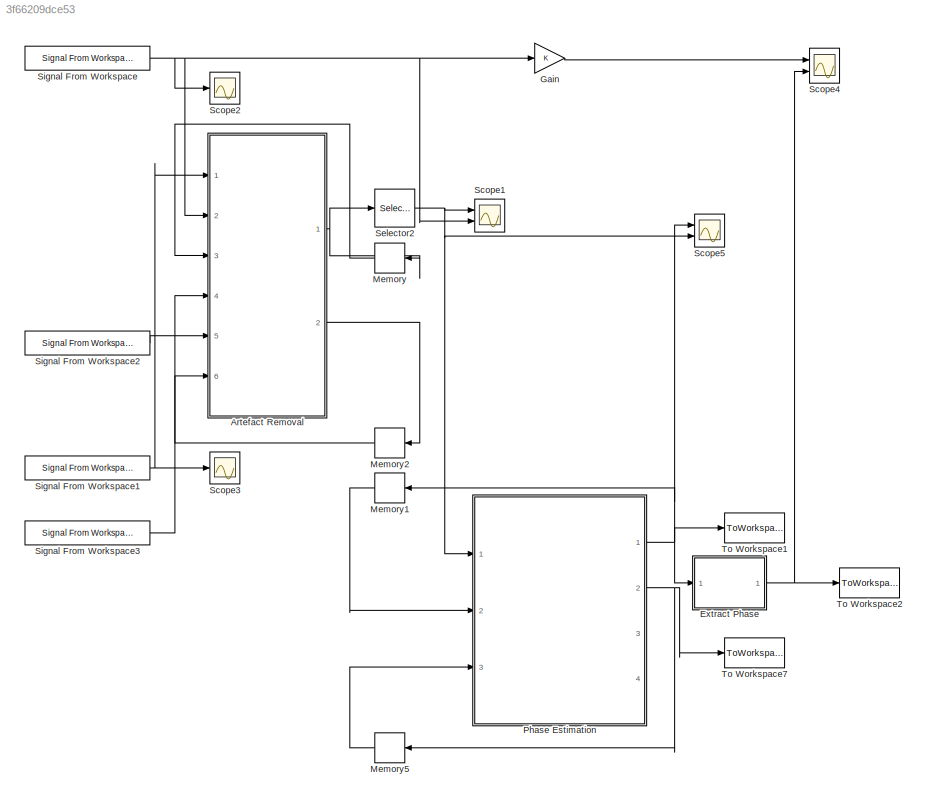
MODEL slx_3f66209dce53
KIND model
CONFIG AbsTol = auto
CONFIG EnableMultiTasking = off
CONFIG FixedStep = model.Ts
CONFIG MaxStep = auto
CONFIG MinStep = auto
CONFIG RelTol = 1e-6
CONFIG SampleTimeConstraint = Unconstrained
CONFIG Solver = VariableStepAuto
CONFIG SolverName = VariableStepAuto
CONFIG StartTime = 0.0
CONFIG StopTime = phase_model.sim_dur
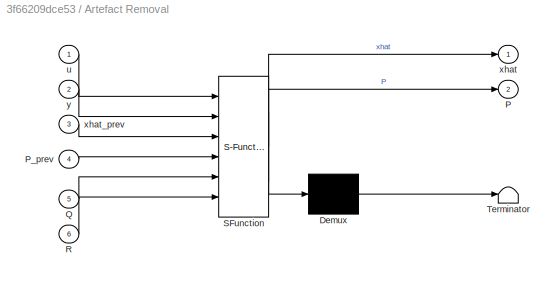
BLOCK [SubSystem] Artefact Removal
  ErrorFcn = Stateflow.Translate.translate
  PermitHierarchicalResolution = ExplicitOnly
  Ports = [6, 2]
  RequestExecContextInheritance = off
  SFBlockType = MATLAB Function
  TreatAsAtomicUnit = on
BLOCK [Demux] Artefact Removal/ Demux 
  Outputs = 1
  Ports = [1, 1]
BLOCK [S-Function] Artefact Removal/ SFunction 
  EnableBusSupport = on
  FunctionName = sf_sfun
  Parameters = artefact_model
  PortCounts = [6 3]
  Ports = [6, 3]
  SFcnIsStateOwnerBlock = off
  SFunctionDeploymentMode = off
  Tag = Stateflow S-Function 3
BLOCK [Terminator] Artefact Removal/ Terminator 
BLOCK [Outport] Artefact Removal/P
  IconDisplay = Port number
  Port = 2
BLOCK [Inport] Artefact Removal/P_prev
  IconDisplay = Port number
  Port = 4
BLOCK [Inport] Artefact Removal/Q
  IconDisplay = Port number
  Port = 5
BLOCK [Inport] Artefact Removal/R
  IconDisplay = Port number
  Port = 6
BLOCK [Inport] Artefact Removal/u
  IconDisplay = Port number
BLOCK [Outport] Artefact Removal/xhat
  IconDisplay = Port number
BLOCK [Inport] Artefact Removal/xhat_prev
  IconDisplay = Port number
  Port = 3
BLOCK [Inport] Artefact Removal/y
  IconDisplay = Port number
  Port = 2
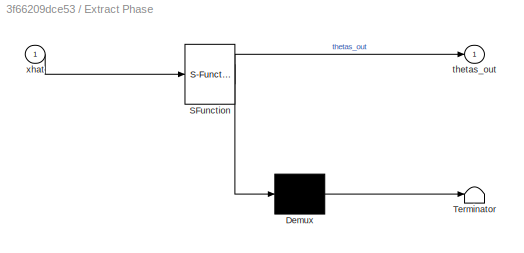
BLOCK [SubSystem] Extract Phase
  ErrorFcn = Stateflow.Translate.translate
  PermitHierarchicalResolution = ExplicitOnly
  Ports = [1, 1]
  RequestExecContextInheritance = off
  SFBlockType = MATLAB Function
  TreatAsAtomicUnit = on
BLOCK [Demux] Extract Phase/ Demux 
  Outputs = 1
  Ports = [1, 1]
BLOCK [S-Function] Extract Phase/ SFunction 
  EnableBusSupport = on
  FunctionName = sf_sfun
  Parameters = phase_model
  PortCounts = [1 2]
  Ports = [1, 2]
  SFcnIsStateOwnerBlock = off
  SFunctionDeploymentMode = off
  Tag = Stateflow S-Function 2
BLOCK [Terminator] Extract Phase/ Terminator 
BLOCK [Outport] Extract Phase/thetas_out
  IconDisplay = Port number
BLOCK [Inport] Extract Phase/xhat
  IconDisplay = Port number
BLOCK [Gain] Gain
  OutDataTypeStr = Inherit: Inherit via internal rule
  ParamDataTypeStr = Inherit: Inherit via internal rule
  SaturateOnIntegerOverflow = off
BLOCK [Memory] Memory
  InheritSampleTime = on
  InitialCondition = [0; 0]
BLOCK [Memory] Memory1
  InheritSampleTime = on
  InitialCondition = [0; 0]
BLOCK [Memory] Memory2
  InheritSampleTime = on
  InitialCondition = [0 0; 0 0]
BLOCK [Memory] Memory5
  InheritSampleTime = on
  InitialCondition = [0 0; 0 0]
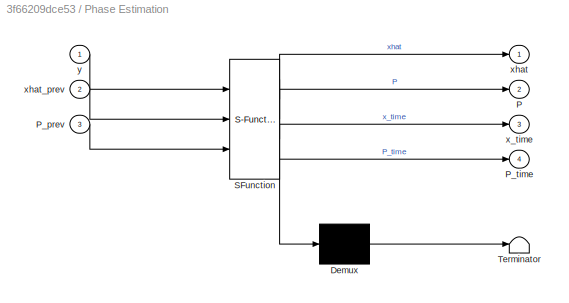
BLOCK [SubSystem] Phase Estimation
  ErrorFcn = Stateflow.Translate.translate
  PermitHierarchicalResolution = ExplicitOnly
  Ports = [3, 4]
  RequestExecContextInheritance = off
  SFBlockType = MATLAB Function
  TreatAsAtomicUnit = on
BLOCK [Demux] Phase Estimation/ Demux 
  Outputs = 1
  Ports = [1, 1]
BLOCK [S-Function] Phase Estimation/ SFunction 
  EnableBusSupport = on
  FunctionName = sf_sfun
  Parameters = phase_model
  PortCounts = [3 5]
  Ports = [3, 5]
  SFcnIsStateOwnerBlock = off
  SFunctionDeploymentMode = off
  Tag = Stateflow S-Function 1
BLOCK [Terminator] Phase Estimation/ Terminator 
BLOCK [Outport] Phase Estimation/P
  IconDisplay = Port number
  Port = 2
BLOCK [Inport] Phase Estimation/P_prev
  IconDisplay = Port number
  Port = 3
BLOCK [Outport] Phase Estimation/P_time
  IconDisplay = Port number
  Port = 4
BLOCK [Outport] Phase Estimation/x_time
  IconDisplay = Port number
  Port = 3
BLOCK [Outport] Phase Estimation/xhat
  IconDisplay = Port number
BLOCK [Inport] Phase Estimation/xhat_prev
  IconDisplay = Port number
  Port = 2
BLOCK [Inport] Phase Estimation/y
  IconDisplay = Port number
BLOCK [Scope] Scope1
  Floating = off
  NumInputPorts = 2
  Ports = [2]
  ScopeSpecificationString = Simulink.scopes.TimeScopeBlockCfg('CurrentConfiguration', extmgr.ConfigurationSet(extmgr.Configuration('Core','General UI',true),extmgr.Configuration('Core','Source UI',true),extmgr.Configuration('Sources','WiredSimulink',true,'DataLoggingVariableName','ScopeData1'),extmgr.Configuration('Visuals','Time Domain',true,'SerializedDisplays',{struct('MinYLimReal','-0.90413','MaxYLimReal','1.00149','YLab...<+1580ch>
BLOCK [Scope] Scope2
  Floating = off
  NumInputPorts = 1
  Ports = [1]
  ScopeSpecificationString = Simulink.scopes.TimeScopeBlockCfg('CurrentConfiguration', extmgr.ConfigurationSet(extmgr.Configuration('Core','General UI',true),extmgr.Configuration('Core','Source UI',true),extmgr.Configuration('Sources','WiredSimulink',true,'DataLoggingVariableName','ScopeData1'),extmgr.Configuration('Visuals','Time Domain',true,'SerializedDisplays',{struct('MinYLimReal','-22.66487','MaxYLimReal','13.12401','YL...<+1457ch>
BLOCK [Scope] Scope3
  Floating = off
  NumInputPorts = 1
  Ports = [1]
  ScopeSpecificationString = Simulink.scopes.TimeScopeBlockCfg('CurrentConfiguration', extmgr.ConfigurationSet(extmgr.Configuration('Core','General UI',true),extmgr.Configuration('Core','Source UI',true),extmgr.Configuration('Sources','WiredSimulink',true,'DataLoggingVariableName','ScopeData2'),extmgr.Configuration('Visuals','Time Domain',true,'SerializedDisplays',{struct('MinYLimReal','-0.48787','MaxYLimReal','0.48787','YLab...<+1452ch>
BLOCK [Scope] Scope4
  Floating = off
  NumInputPorts = 2
  Ports = [2]
  ScopeSpecificationString = Simulink.scopes.TimeScopeBlockCfg('CurrentConfiguration', extmgr.ConfigurationSet(extmgr.Configuration('Core','General UI',true,'FigureColor',[1 1 1]),extmgr.Configuration('Core','Source UI',true),extmgr.Configuration('Sources','WiredSimulink',true),extmgr.Configuration('Visuals','Time Domain',true,'SerializedDisplays',{struct('MinYLimReal','-22.66487','MaxYLimReal','13.12401','YLabelReal','','Min...<+1556ch>
BLOCK [Scope] Scope5
  Floating = off
  NumInputPorts = 2
  Ports = [2]
  ScopeSpecificationString = Simulink.scopes.TimeScopeBlockCfg('CurrentConfiguration', extmgr.ConfigurationSet(extmgr.Configuration('Core','General UI',true),extmgr.Configuration('Core','Source UI',true),extmgr.Configuration('Sources','WiredSimulink',true,'DataLoggingVariableName','ScopeData1'),extmgr.Configuration('Visuals','Time Domain',true,'SerializedDisplays',{struct('MinYLimReal','-0.0496','MaxYLimReal','0.03579','YLabe...<+1485ch>
BLOCK [Selector] Selector2
  IndexOptions = Index vector (dialog)
  Indices = [1]
  InputPortWidth = 2
  OutputSizes = 1
  Ports = [1, 1]
BLOCK [Reference] Signal From Workspace  REF=dspsrcs4/Signal From
Workspace
  Ports = [0, 1]
  SourceBlock = dspsrcs4/Signal From\nWorkspace
  SourceProductBaseCode = DS
  SourceProductName = DSP System Toolbox
  SourceType = Signal From Workspace
BLOCK [Reference] Signal From Workspace1  REF=dspsrcs4/Signal From
Workspace
  Ports = [0, 1]
  SourceBlock = dspsrcs4/Signal From\nWorkspace
  SourceProductBaseCode = DS
  SourceProductName = DSP System Toolbox
  SourceType = Signal From Workspace
BLOCK [Reference] Signal From Workspace2  REF=dspsrcs4/Signal From
Workspace
  Ports = [0, 1]
  SourceBlock = dspsrcs4/Signal From\nWorkspace
  SourceProductBaseCode = DS
  SourceProductName = DSP System Toolbox
  SourceType = Signal From Workspace
BLOCK [Reference] Signal From Workspace3  REF=dspsrcs4/Signal From
Workspace
  Ports = [0, 1]
  SourceBlock = dspsrcs4/Signal From\nWorkspace
  SourceProductBaseCode = DS
  SourceProductName = DSP System Toolbox
  SourceType = Signal From Workspace
BLOCK [ToWorkspace] To Workspace1
  MaxDataPoints = inf
  Ports = [1]
  SampleTime = -1
  Save2DSignal = 2-D array (concatenate along first dimension)
  VariableName = xtt
BLOCK [ToWorkspace] To Workspace2
  MaxDataPoints = inf
  Ports = [1]
  SampleTime = -1
  Save2DSignal = 2-D array (concatenate along first dimension)
  VariableName = thetas
BLOCK [ToWorkspace] To Workspace7
  MaxDataPoints = inf
  Ports = [1]
  SampleTime = -1
  Save2DSignal = 2-D array (concatenate along first dimension)
  VariableName = Ptt
NET Artefact Removal:1 -> Memory:1, Selector2:1
LINE Artefact Removal:2 -> Memory2:1
NET Extract Phase:1 -> Scope4:2, To Workspace2:1
LINE Gain:1 -> Scope4:1
LINE Memory1:1 -> Phase Estimation:2
LINE Memory2:1 -> Artefact Removal:4
LINE Memory5:1 -> Phase Estimation:3
LINE Memory:1 -> Artefact Removal:3
NET Phase Estimation:1 -> Extract Phase:1, Memory1:1, Scope5:1, To Workspace1:1
NET Phase Estimation:2 -> Memory5:1, To Workspace7:1
NET Selector2:1 -> Phase Estimation:1, Scope1:1, Scope5:2
NET Signal From Workspace1:1 -> Artefact Removal:1, Scope3:1
LINE Signal From Workspace2:1 -> Artefact Removal:5
LINE Signal From Workspace3:1 -> Artefact Removal:6
NET Signal From Workspace:1 -> Artefact Removal:2, Gain:1, Scope1:2, Scope2:1
note: NET lines group one-source signal fan-out (src -> all destinations, sorted); 1:1 wires keep LINE
CHART Phase Estimation states=1 transitions=1
  STATE_LABEL 'eML_blk_kernel()'
  STATE_LABEL "SCRIPT:\nfunction [xhat, P, x_time, P_time] = phase_kalman(y, xhat_prev, P_prev, phase_model)\nx_time = phase_model.A*xhat_prev;\nP_time = phase_model.A*P_prev*phase_model.A'+ phase_model.Q;\n\nK = P_time*(phase_model.C')*pinv(phase_model.C*P_time*phase_model.C' + phase_model.R);\nepsilon = y - phase_model.C*x_time;\n\nxhat = x_time + K*epsilon;\nP = P_time - K*phase_model.C*P_time;\nend"
CHART Extract Phase states=1 transitions=1
  STATE_LABEL 'eML_blk_kernel()'
  STATE_LABEL 'SCRIPT:\nfunction thetas_out  = extract_phase(xhat, phase_model)\n\nthetas_out = mod(atan2(xhat(2), xhat(1))-pi/2-2*pi*phase_model.Ts*phase_model.f+2*pi, 2*pi)-pi;'
CHART Artefact Removal states=1 transitions=1
  STATE_LABEL 'eML_blk_kernel()'
  STATE_LABEL "SCRIPT:\nfunction [xhat, P] = artefact_kalman(u, y, xhat_prev, P_prev, Q, R, artefact_model)\nx_time = artefact_model.A*xhat_prev + artefact_model.B*u;\nP_time = artefact_model.A*P_prev*artefact_model.A'+ Q;\n\nK = P_time*(artefact_model.C')*pinv(artefact_model.C*P_time*artefact_model.C' + R);\nepsilon = y - artefact_model.C*x_time-artefact_model.D*u;\n\nxhat = x_time + K*epsilon;\nP = P_time - K*artefact_...<+15ch>"
